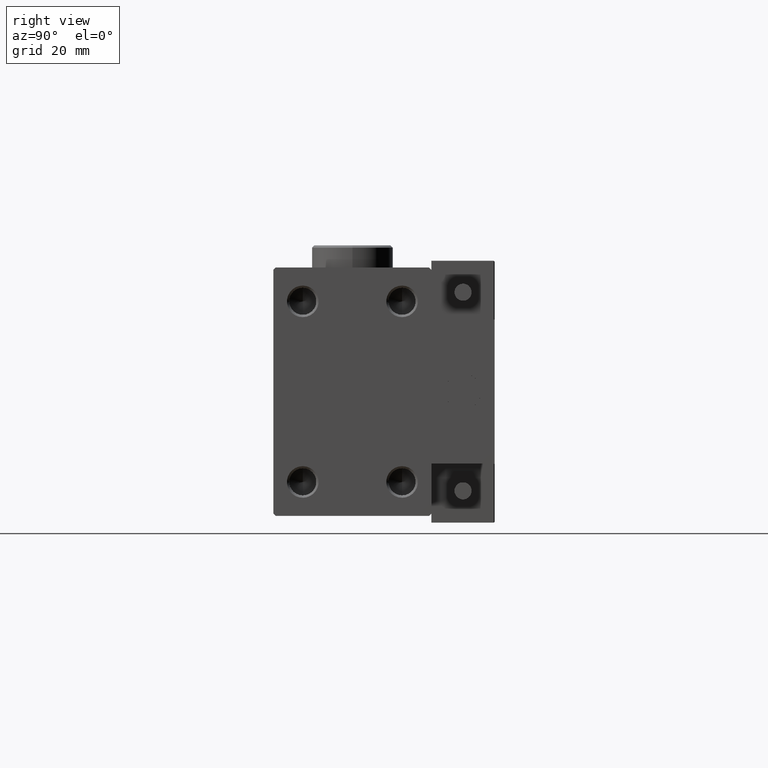
[diagram: clean part render]
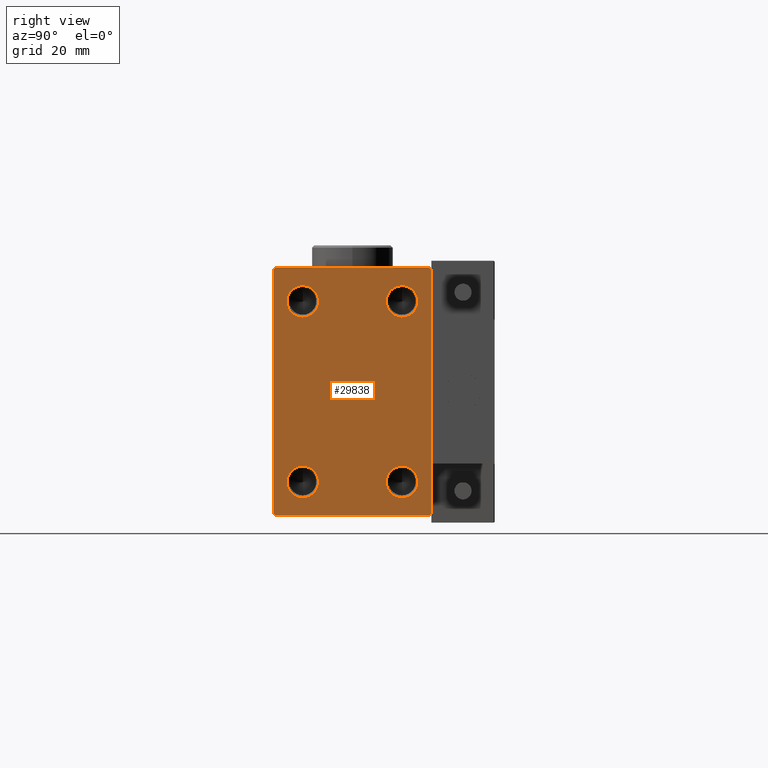
[diagram: same view with one face highlighted and labeled with its STEP entity id]
A machine part, right view. The second image highlights one B-rep face of the part: STEP entity #29838.
In plain terms, the highlighted planar face has unit normal (1, 0, 0).
Its self-contained STEP definition (entity closure, byte-faithful):
#145 = EDGE_LOOP ( 'NONE', ( #10774, #40316 ) ) ;
#201 = FACE_BOUND ( 'NONE', #25281, .T. ) ;
#1420 = AXIS2_PLACEMENT_3D ( 'NONE', #51986, #28100, #24096 ) ;
#2068 = EDGE_CURVE ( 'NONE', #27302, #14515, #39337, .T. ) ;
#2204 = LINE ( 'NONE', #19452, #42419 ) ;
#2810 = DIRECTION ( 'NONE',  ( 1.000000000000000000, -0.000000000000000000, -0.000000000000000000 ) ) ;
#3103 = CARTESIAN_POINT ( 'NONE',  ( 71.00000000000000000, 11.00000000000000178, -16.49999999999999289 ) ) ;
#3611 = ORIENTED_EDGE ( 'NONE', *, *, #39735, .T. ) ;
#3788 = VECTOR ( 'NONE', #44323, 999.9999999999998863 ) ;
#3861 = VECTOR ( 'NONE', #14795, 999.9999999999998863 ) ;
#4031 = EDGE_CURVE ( 'NONE', #15577, #19420, #15132, .T. ) ;
#4123 = CIRCLE ( 'NONE', #12581, 3.500000000000003109 ) ;
#4128 = VERTEX_POINT ( 'NONE', #37145 ) ;
#6124 = CARTESIAN_POINT ( 'NONE',  ( 71.00000000000000000, 17.50000000000000000, 27.49999999999999289 ) ) ;
#6233 = EDGE_CURVE ( 'NONE', #13809, #20843, #11070, .T. ) ;
#6285 = CARTESIAN_POINT ( 'NONE',  ( 71.00000000000000000, 11.00000000000000178, -20.00000000000000000 ) ) ;
#6383 = DIRECTION ( 'NONE',  ( 0.000000000000000000, -1.000000000000000000, -1.982541115402065356E-16 ) ) ;
#6486 = ORIENTED_EDGE ( 'NONE', *, *, #18963, .T. ) ;
#6506 = CARTESIAN_POINT ( 'NONE',  ( 71.00000000000000000, 11.00000000000000178, 23.50000000000001421 ) ) ;
#6594 = CARTESIAN_POINT ( 'NONE',  ( 71.00000000000000000, -11.00000000000000533, -16.49999999999999289 ) ) ;
#8435 = DIRECTION ( 'NONE',  ( 0.000000000000000000, 0.000000000000000000, -1.000000000000000000 ) ) ;
#8506 = AXIS2_PLACEMENT_3D ( 'NONE', #30177, #2810, #47144 ) ;
#8652 = EDGE_LOOP ( 'NONE', ( #39835, #40264 ) ) ;
#9160 = VERTEX_POINT ( 'NONE', #3103 ) ;
#9767 = CARTESIAN_POINT ( 'NONE',  ( 71.00000000000000000, 11.00000000000000178, 16.50000000000000000 ) ) ;
#9994 = VERTEX_POINT ( 'NONE', #9767 ) ;
#10180 = CARTESIAN_POINT ( 'NONE',  ( 71.00000000000000000, 17.50000000000000000, 26.99999999999999645 ) ) ;
#10486 = DIRECTION ( 'NONE',  ( 1.000000000000000000, -0.000000000000000000, -0.000000000000000000 ) ) ;
#10526 = VERTEX_POINT ( 'NONE', #10180 ) ;
#10621 = DIRECTION ( 'NONE',  ( 0.000000000000000000, 0.000000000000000000, -1.000000000000000000 ) ) ;
#10695 = DIRECTION ( 'NONE',  ( 0.000000000000000000, -1.261617073437677752E-16, 1.000000000000000000 ) ) ;
#10774 = ORIENTED_EDGE ( 'NONE', *, *, #16510, .F. ) ;
#11070 = LINE ( 'NONE', #19033, #3861 ) ;
#11888 = LINE ( 'NONE', #39524, #15264 ) ;
#12166 = VERTEX_POINT ( 'NONE', #29083 ) ;
#12357 = EDGE_CURVE ( 'NONE', #10526, #33227, #43394, .T. ) ;
#12405 = PLANE ( 'NONE',  #49735 ) ;
#12537 = DIRECTION ( 'NONE',  ( 0.000000000000000000, -0.7071067811865474617, -0.7071067811865474617 ) ) ;
#12581 = AXIS2_PLACEMENT_3D ( 'NONE', #6285, #27530, #23270 ) ;
#12796 = CARTESIAN_POINT ( 'NONE',  ( 71.00000000000000000, 11.00000000000000178, -20.00000000000000000 ) ) ;
#13164 = ORIENTED_EDGE ( 'NONE', *, *, #38594, .T. ) ;
#13372 = ORIENTED_EDGE ( 'NONE', *, *, #49466, .F. ) ;
#13809 = VERTEX_POINT ( 'NONE', #23576 ) ;
#14515 = VERTEX_POINT ( 'NONE', #24360 ) ;
#14795 = DIRECTION ( 'NONE',  ( -0.000000000000000000, 0.7071067811865574537, 0.7071067811865376918 ) ) ;
#15132 = LINE ( 'NONE', #48024, #3788 ) ;
#15264 = VECTOR ( 'NONE', #28099, 1000.000000000000000 ) ;
#15365 = FACE_BOUND ( 'NONE', #22616, .T. ) ;
#15414 = EDGE_LOOP ( 'NONE', ( #13164, #33793, #3611, #25046, #17540, #38523, #6486, #44695 ) ) ;
#15577 = VERTEX_POINT ( 'NONE', #37643 ) ;
#16081 = VECTOR ( 'NONE', #12537, 1000.000000000000114 ) ;
#16510 = EDGE_CURVE ( 'NONE', #9160, #4128, #4123, .T. ) ;
#17540 = ORIENTED_EDGE ( 'NONE', *, *, #32646, .T. ) ;
#17821 = LINE ( 'NONE', #6124, #50833 ) ;
#18761 = CARTESIAN_POINT ( 'NONE',  ( 71.00000000000000000, -17.49999999999999645, -27.50000000000000711 ) ) ;
#18963 = EDGE_CURVE ( 'NONE', #20843, #10526, #2204, .T. ) ;
#19033 = CARTESIAN_POINT ( 'NONE',  ( 71.00000000000000000, 22.24999999999975842, -22.25000000000037659 ) ) ;
#19111 = DIRECTION ( 'NONE',  ( 1.000000000000000000, -0.000000000000000000, -0.000000000000000000 ) ) ;
#19280 = ORIENTED_EDGE ( 'NONE', *, *, #36298, .F. ) ;
#19296 = ORIENTED_EDGE ( 'NONE', *, *, #44169, .F. ) ;
#19420 = VERTEX_POINT ( 'NONE', #46200 ) ;
#19452 = CARTESIAN_POINT ( 'NONE',  ( 71.00000000000000000, 17.50000000000000711, -27.50000000000001066 ) ) ;
#19809 = DIRECTION ( 'NONE',  ( 1.000000000000000000, -0.000000000000000000, -0.000000000000000000 ) ) ;
#19987 = CARTESIAN_POINT ( 'NONE',  ( 71.00000000000000000, 22.24999999999993960, 22.25000000000009237 ) ) ;
#20108 = EDGE_CURVE ( 'NONE', #4128, #9160, #22093, .T. ) ;
#20242 = LINE ( 'NONE', #40424, #16081 ) ;
#20843 = VERTEX_POINT ( 'NONE', #41015 ) ;
#21916 = DIRECTION ( 'NONE',  ( 1.000000000000000000, -0.000000000000000000, -0.000000000000000000 ) ) ;
#22093 = CIRCLE ( 'NONE', #46647, 3.500000000000003109 ) ;
#22616 = EDGE_LOOP ( 'NONE', ( #26992, #19280 ) ) ;
#23200 = AXIS2_PLACEMENT_3D ( 'NONE', #36550, #19809, #47701 ) ;
#23270 = DIRECTION ( 'NONE',  ( 0.000000000000000000, 0.000000000000000000, -1.000000000000000000 ) ) ;
#23576 = CARTESIAN_POINT ( 'NONE',  ( 71.00000000000000000, 16.99999999999997868, -27.50000000000001066 ) ) ;
#23966 = AXIS2_PLACEMENT_3D ( 'NONE', #30161, #21916, #25908 ) ;
#24096 = DIRECTION ( 'NONE',  ( 0.000000000000000000, 0.000000000000000000, -1.000000000000000000 ) ) ;
#24360 = CARTESIAN_POINT ( 'NONE',  ( 71.00000000000000000, -11.00000000000000533, 23.50000000000001421 ) ) ;
#24940 = CARTESIAN_POINT ( 'NONE',  ( 71.00000000000000000, -11.00000000000000533, 16.50000000000000000 ) ) ;
#25046 = ORIENTED_EDGE ( 'NONE', *, *, #4031, .T. ) ;
#25281 = EDGE_LOOP ( 'NONE', ( #19296, #13372 ) ) ;
#25903 = CIRCLE ( 'NONE', #1420, 3.500000000000003109 ) ;
#25908 = DIRECTION ( 'NONE',  ( 0.000000000000000000, 0.000000000000000000, -1.000000000000000000 ) ) ;
#26962 = CARTESIAN_POINT ( 'NONE',  ( 71.00000000000000000, 11.00000000000000178, 20.00000000000000711 ) ) ;
#26992 = ORIENTED_EDGE ( 'NONE', *, *, #48736, .F. ) ;
#26997 = VECTOR ( 'NONE', #27975, 1000.000000000000114 ) ;
#27302 = VERTEX_POINT ( 'NONE', #24940 ) ;
#27530 = DIRECTION ( 'NONE',  ( 1.000000000000000000, -0.000000000000000000, -0.000000000000000000 ) ) ;
#27803 = VERTEX_POINT ( 'NONE', #6506 ) ;
#27975 = DIRECTION ( 'NONE',  ( -0.000000000000000000, -0.7071067811865500152, 0.7071067811865451302 ) ) ;
#28099 = DIRECTION ( 'NONE',  ( 0.000000000000000000, 0.000000000000000000, -1.000000000000000000 ) ) ;
#28100 = DIRECTION ( 'NONE',  ( 1.000000000000000000, -0.000000000000000000, -0.000000000000000000 ) ) ;
#28623 = CARTESIAN_POINT ( 'NONE',  ( 71.00000000000000000, 0.000000000000000000, 0.000000000000000000 ) ) ;
#29001 = DIRECTION ( 'NONE',  ( 0.000000000000000000, 0.000000000000000000, -1.000000000000000000 ) ) ;
#29083 = CARTESIAN_POINT ( 'NONE',  ( 71.00000000000000000, -11.00000000000000533, -23.50000000000000711 ) ) ;
#29819 = EDGE_CURVE ( 'NONE', #14515, #27302, #25903, .T. ) ;
#29838 = ADVANCED_FACE ( 'NONE', ( #15365, #36330, #201, #52504, #32607 ), #12405, .T. ) ;
#29858 = CIRCLE ( 'NONE', #34098, 3.500000000000003109 ) ;
#29885 = CIRCLE ( 'NONE', #23966, 3.500000000000003109 ) ;
#30161 = CARTESIAN_POINT ( 'NONE',  ( 71.00000000000000000, -11.00000000000000533, -20.00000000000000000 ) ) ;
#30177 = CARTESIAN_POINT ( 'NONE',  ( 71.00000000000000000, -11.00000000000000533, -20.00000000000000000 ) ) ;
#32607 = FACE_OUTER_BOUND ( 'NONE', #15414, .T. ) ;
#32646 = EDGE_CURVE ( 'NONE', #19420, #13809, #38957, .T. ) ;
#33227 = VERTEX_POINT ( 'NONE', #46710 ) ;
#33793 = ORIENTED_EDGE ( 'NONE', *, *, #43342, .T. ) ;
#34098 = AXIS2_PLACEMENT_3D ( 'NONE', #26962, #10486, #36442 ) ;
#35362 = CARTESIAN_POINT ( 'NONE',  ( 71.00000000000000000, -16.99999999999999289, 27.49999999999998579 ) ) ;
#36298 = EDGE_CURVE ( 'NONE', #9994, #27803, #43917, .T. ) ;
#36330 = FACE_BOUND ( 'NONE', #8652, .T. ) ;
#36442 = DIRECTION ( 'NONE',  ( 0.000000000000000000, 0.000000000000000000, -1.000000000000000000 ) ) ;
#36550 = CARTESIAN_POINT ( 'NONE',  ( 71.00000000000000000, -11.00000000000000533, 20.00000000000000711 ) ) ;
#37145 = CARTESIAN_POINT ( 'NONE',  ( 71.00000000000000000, 11.00000000000000178, -23.50000000000000711 ) ) ;
#37643 = CARTESIAN_POINT ( 'NONE',  ( 71.00000000000000000, -17.49999999999999645, -26.99999999999997868 ) ) ;
#38523 = ORIENTED_EDGE ( 'NONE', *, *, #6233, .T. ) ;
#38594 = EDGE_CURVE ( 'NONE', #33227, #41287, #17821, .T. ) ;
#38957 = LINE ( 'NONE', #18761, #42128 ) ;
#39337 = CIRCLE ( 'NONE', #23200, 3.500000000000003109 ) ;
#39524 = CARTESIAN_POINT ( 'NONE',  ( 71.00000000000000000, -17.49999999999999645, 27.49999999999998579 ) ) ;
#39630 = VERTEX_POINT ( 'NONE', #6594 ) ;
#39735 = EDGE_CURVE ( 'NONE', #50105, #15577, #11888, .T. ) ;
#39831 = CARTESIAN_POINT ( 'NONE',  ( 71.00000000000000000, 11.00000000000000178, 20.00000000000000711 ) ) ;
#39835 = ORIENTED_EDGE ( 'NONE', *, *, #29819, .F. ) ;
#40264 = ORIENTED_EDGE ( 'NONE', *, *, #2068, .F. ) ;
#40316 = ORIENTED_EDGE ( 'NONE', *, *, #20108, .F. ) ;
#40411 = DIRECTION ( 'NONE',  ( 1.000000000000000000, -0.000000000000000000, -0.000000000000000000 ) ) ;
#40424 = CARTESIAN_POINT ( 'NONE',  ( 71.00000000000000000, -22.24999999999999289, 22.24999999999999289 ) ) ;
#41015 = CARTESIAN_POINT ( 'NONE',  ( 71.00000000000000000, 17.50000000000000711, -26.99999999999999645 ) ) ;
#41287 = VERTEX_POINT ( 'NONE', #35362 ) ;
#42128 = VECTOR ( 'NONE', #46635, 1000.000000000000000 ) ;
#42419 = VECTOR ( 'NONE', #10695, 1000.000000000000000 ) ;
#43342 = EDGE_CURVE ( 'NONE', #41287, #50105, #20242, .T. ) ;
#43394 = LINE ( 'NONE', #19987, #26997 ) ;
#43917 = CIRCLE ( 'NONE', #46483, 3.500000000000003109 ) ;
#44169 = EDGE_CURVE ( 'NONE', #39630, #12166, #49199, .T. ) ;
#44323 = DIRECTION ( 'NONE',  ( -0.000000000000000000, 0.7071067811865376918, -0.7071067811865574537 ) ) ;
#44695 = ORIENTED_EDGE ( 'NONE', *, *, #12357, .T. ) ;
#44815 = DIRECTION ( 'NONE',  ( 1.000000000000000000, 0.000000000000000000, 0.000000000000000000 ) ) ;
#46200 = CARTESIAN_POINT ( 'NONE',  ( 71.00000000000000000, -16.99999999999997868, -27.50000000000000711 ) ) ;
#46483 = AXIS2_PLACEMENT_3D ( 'NONE', #39831, #19111, #10621 ) ;
#46635 = DIRECTION ( 'NONE',  ( 0.000000000000000000, 1.000000000000000000, -9.912705577010325549E-17 ) ) ;
#46647 = AXIS2_PLACEMENT_3D ( 'NONE', #12796, #40411, #29001 ) ;
#46710 = CARTESIAN_POINT ( 'NONE',  ( 71.00000000000000000, 17.00000000000000000, 27.49999999999999289 ) ) ;
#47144 = DIRECTION ( 'NONE',  ( 0.000000000000000000, 0.000000000000000000, -1.000000000000000000 ) ) ;
#47701 = DIRECTION ( 'NONE',  ( 0.000000000000000000, 0.000000000000000000, -1.000000000000000000 ) ) ;
#48024 = CARTESIAN_POINT ( 'NONE',  ( 71.00000000000000000, -22.25000000000023093, -22.24999999999960920 ) ) ;
#48736 = EDGE_CURVE ( 'NONE', #27803, #9994, #29858, .T. ) ;
#49199 = CIRCLE ( 'NONE', #8506, 3.500000000000003109 ) ;
#49466 = EDGE_CURVE ( 'NONE', #12166, #39630, #29885, .T. ) ;
#49735 = AXIS2_PLACEMENT_3D ( 'NONE', #28623, #44815, #8435 ) ;
#50105 = VERTEX_POINT ( 'NONE', #51721 ) ;
#50833 = VECTOR ( 'NONE', #6383, 1000.000000000000000 ) ;
#51721 = CARTESIAN_POINT ( 'NONE',  ( 71.00000000000000000, -17.49999999999999645, 26.99999999999998579 ) ) ;
#51986 = CARTESIAN_POINT ( 'NONE',  ( 71.00000000000000000, -11.00000000000000533, 20.00000000000000711 ) ) ;
#52504 = FACE_BOUND ( 'NONE', #145, .T. ) ;